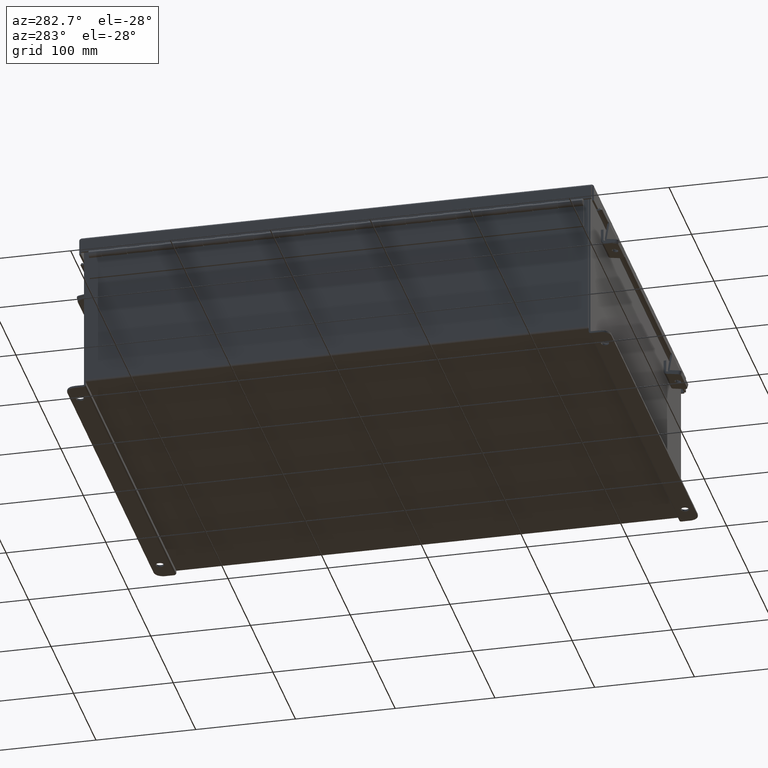
[diagram: clean part render]
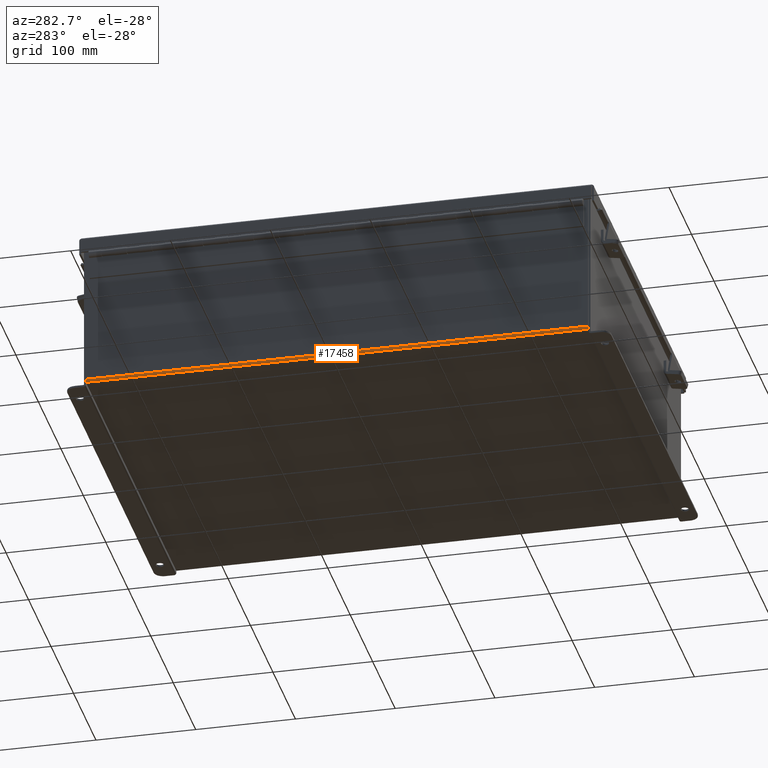
[diagram: same view with one face highlighted and labeled with its STEP entity id]
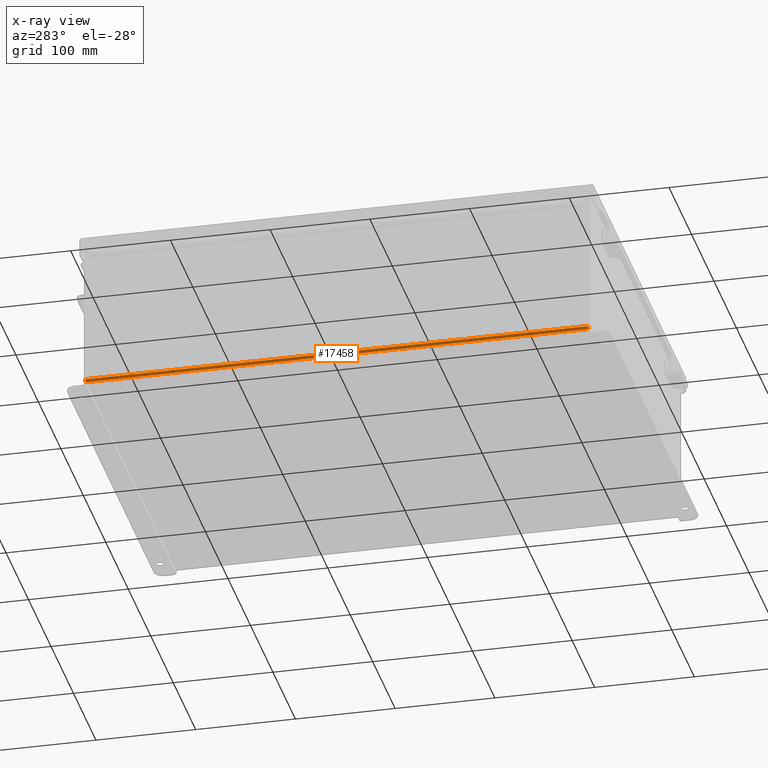
[diagram: x-ray of the same camera — body ghosted, the highlighted face saturated]
A machine part, auxiliary view. The second image highlights one B-rep face of the part: STEP entity #17458.
The next image is the same camera in x-ray: the body ghosted, the highlighted face saturated — about 0% of this face is hidden behind the body in this view.
In plain terms, the highlighted cylindrical surface (edge-blend (fillet) strip) has radius 2.2276 mm, axis along (0, -1, -0).
Its self-contained STEP definition (entity closure, byte-faithful):
#734 = DIRECTION ( 'NONE',  ( -0.0000000000000000000, 1.000000000000000000, 8.208677865577646300E-017 ) ) ;
#1506 = CARTESIAN_POINT ( 'NONE',  ( -7.912299999999996600, -9.925299999999998200, 0.01299999999999878300 ) ) ;
#1982 = CARTESIAN_POINT ( 'NONE',  ( -7.999999999999996400, 9.925299999999998200, 0.01300000000000009800 ) ) ;
#2005 = CARTESIAN_POINT ( 'NONE',  ( -7.912299999999996600, -9.925299999999998200, -0.07470000000000130700 ) ) ;
#2187 = VECTOR ( 'NONE', #6205, 39.37007874015748100 ) ;
#3328 = ORIENTED_EDGE ( 'NONE', *, *, #12217, .F. ) ;
#3516 = CYLINDRICAL_SURFACE ( 'NONE', #20599, 0.08770000000000026400 ) ;
#3983 = VERTEX_POINT ( 'NONE', #16926 ) ;
#4029 = FACE_OUTER_BOUND ( 'NONE', #20400, .T. ) ;
#4888 = CIRCLE ( 'NONE', #15985, 0.08770000000000009700 ) ;
#6205 = DIRECTION ( 'NONE',  ( -1.953496330014866600E-031, 1.000000000000000000, 5.504816970095139000E-017 ) ) ;
#6257 = VERTEX_POINT ( 'NONE', #1982 ) ;
#6389 = DIRECTION ( 'NONE',  ( 0.0000000000000000000, -1.000000000000000000, -8.208677865577646300E-017 ) ) ;
#6898 = CIRCLE ( 'NONE', #17625, 0.08770000000000009700 ) ;
#7971 = ORIENTED_EDGE ( 'NONE', *, *, #13164, .T. ) ;
#8320 = DIRECTION ( 'NONE',  ( -1.000000000000000000, 0.0000000000000000000, -3.553037762569317100E-015 ) ) ;
#9269 = CARTESIAN_POINT ( 'NONE',  ( -7.912299999999996600, -9.925299999999998200, -0.07470000000000130700 ) ) ;
#11021 = CARTESIAN_POINT ( 'NONE',  ( -7.912299999999996600, 9.925299999999998200, 0.01300000000000042300 ) ) ;
#12217 = EDGE_CURVE ( 'NONE', #3983, #6257, #4888, .T. ) ;
#12621 = CARTESIAN_POINT ( 'NONE',  ( -7.999999999999996400, -9.925299999999996500, 0.01299999999999875000 ) ) ;
#12780 = DIRECTION ( 'NONE',  ( 0.0000000000000000000, 0.0000000000000000000, -1.000000000000000000 ) ) ;
#13154 = CARTESIAN_POINT ( 'NONE',  ( -7.999999999999996400, 9.925299999999998200, 0.01299999999999984300 ) ) ;
#13164 = EDGE_CURVE ( 'NONE', #21602, #6257, #15979, .T. ) ;
#13549 = DIRECTION ( 'NONE',  ( 0.0000000000000000000, -1.000000000000000000, -8.208677865577646300E-017 ) ) ;
#14142 = EDGE_CURVE ( 'NONE', #20899, #3983, #20592, .T. ) ;
#14848 = VECTOR ( 'NONE', #16239, 39.37007874015748100 ) ;
#15979 = LINE ( 'NONE', #13154, #2187 ) ;
#15985 = AXIS2_PLACEMENT_3D ( 'NONE', #11021, #734, #12780 ) ;
#16239 = DIRECTION ( 'NONE',  ( -0.0000000000000000000, 1.000000000000000000, 8.208677865577646300E-017 ) ) ;
#16437 = EDGE_CURVE ( 'NONE', #21602, #20899, #6898, .T. ) ;
#16733 = CARTESIAN_POINT ( 'NONE',  ( -7.912299999999996600, -9.925299999999998200, 0.01299999999999878300 ) ) ;
#16926 = CARTESIAN_POINT ( 'NONE',  ( -7.912299999999996600, 9.925299999999998200, -0.07470000000000000300 ) ) ;
#17458 = ADVANCED_FACE ( 'NONE', ( #4029 ), #3516, .T. ) ;
#17625 = AXIS2_PLACEMENT_3D ( 'NONE', #16733, #6389, #18490 ) ;
#18490 = DIRECTION ( 'NONE',  ( 0.0000000000000000000, 0.0000000000000000000, -1.000000000000000000 ) ) ;
#20093 = ORIENTED_EDGE ( 'NONE', *, *, #14142, .F. ) ;
#20400 = EDGE_LOOP ( 'NONE', ( #20093, #21123, #7971, #3328 ) ) ;
#20592 = LINE ( 'NONE', #9269, #14848 ) ;
#20599 = AXIS2_PLACEMENT_3D ( 'NONE', #1506, #13549, #8320 ) ;
#20899 = VERTEX_POINT ( 'NONE', #2005 ) ;
#21123 = ORIENTED_EDGE ( 'NONE', *, *, #16437, .F. ) ;
#21602 = VERTEX_POINT ( 'NONE', #12621 ) ;